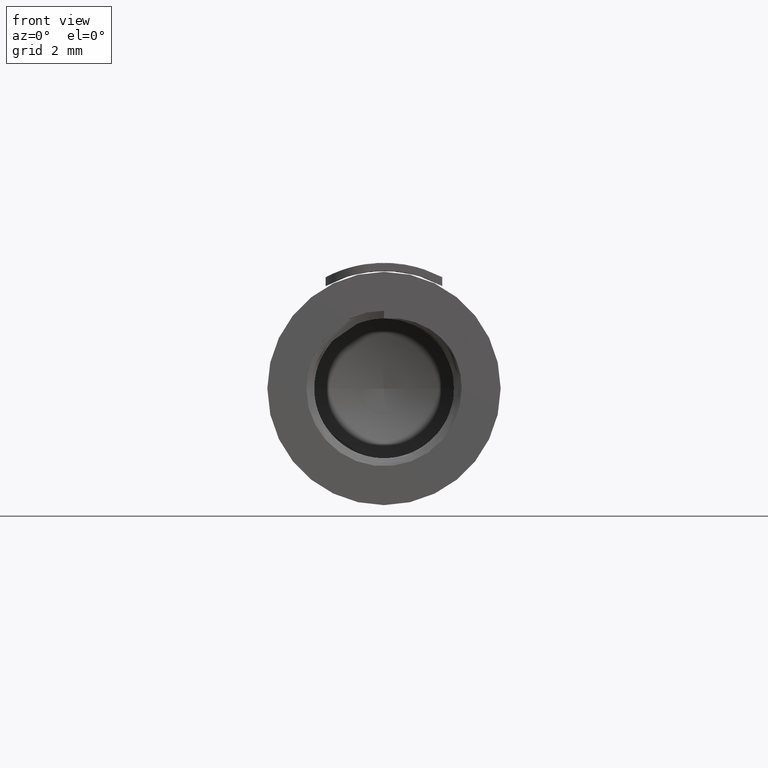
[diagram: clean part render]
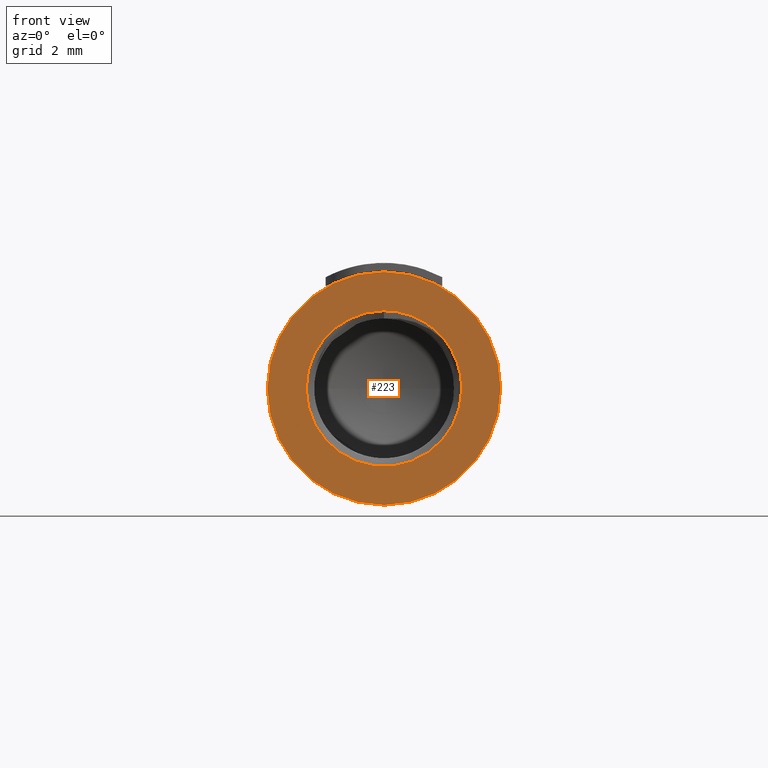
[diagram: same view with one face highlighted and labeled with its STEP entity id]
A machine part, front view. The second image highlights one B-rep face of the part: STEP entity #223.
In plain terms, the highlighted planar face has unit normal (0, 1, 0).
Its self-contained STEP definition (entity closure, byte-faithful):
#223=ADVANCED_FACE('',(#730,#731),#732,.F.);
#730=FACE_OUTER_BOUND('',#1536,.T.);
#731=FACE_BOUND('',#1537,.T.);
#732=PLANE('',#1538);
#1536=EDGE_LOOP('',(#7252,#7253));
#1537=EDGE_LOOP('',(#7254,#7255,#7256,#7257,#7258,#7259,#7260));
#1538=AXIS2_PLACEMENT_3D('',#7261,#7262,#7263);
#7252=ORIENTED_EDGE('',*,*,#9892,.T.);
#7253=ORIENTED_EDGE('',*,*,#9254,.T.);
#7254=ORIENTED_EDGE('',*,*,#9888,.F.);
#7255=ORIENTED_EDGE('',*,*,#9893,.F.);
#7256=ORIENTED_EDGE('',*,*,#9881,.F.);
#7257=ORIENTED_EDGE('',*,*,#9862,.F.);
#7258=ORIENTED_EDGE('',*,*,#9890,.F.);
#7259=ORIENTED_EDGE('',*,*,#9894,.F.);
#7260=ORIENTED_EDGE('',*,*,#9857,.F.);
#7261=CARTESIAN_POINT('',(-1.83697019872103E-16,-1.7347234759768E-15,-3.0));
#7262=DIRECTION('',(0.0,1.0,0.0));
#7263=DIRECTION('',(-1.0,0.0,6.12323399573677E-17));
#9254=EDGE_CURVE('',#10950,#10947,#10951,.T.);
#9857=EDGE_CURVE('',#12094,#12096,#12097,.T.);
#9862=EDGE_CURVE('',#12104,#12106,#12107,.T.);
#9881=EDGE_CURVE('',#12106,#12133,#12136,.T.);
#9888=EDGE_CURVE('',#12143,#12094,#12145,.T.);
#9890=EDGE_CURVE('',#12146,#12104,#12148,.T.);
#9892=EDGE_CURVE('',#10947,#10950,#12150,.T.);
#9893=EDGE_CURVE('',#12133,#12143,#12151,.T.);
#9894=EDGE_CURVE('',#12096,#12146,#12152,.T.);
#10947=VERTEX_POINT('',#13842);
#10950=VERTEX_POINT('',#13846);
#10951=CIRCLE('',#13847,3.0);
#12094=VERTEX_POINT('',#16208);
#12096=VERTEX_POINT('',#16216);
#12097=CIRCLE('',#16217,2.0);
#12104=VERTEX_POINT('',#16242);
#12106=VERTEX_POINT('',#16245);
#12107=CIRCLE('',#16246,2.0);
#12133=VERTEX_POINT('',#16309);
#12136=CIRCLE('',#16316,2.0);
#12143=VERTEX_POINT('',#16332);
#12145=B_SPLINE_CURVE_WITH_KNOTS('',3,(#16337,#16338,#16339,#16340),.UNSPECIFIED.,.F.,.F.,(4,4),(0.0,1.0),.UNSPECIFIED.);
#12146=VERTEX_POINT('',#16341);
#12148=CIRCLE('',#16349,2.0);
#12150=CIRCLE('',#16351,3.0);
#12151=CIRCLE('',#16352,2.0);
#12152=B_SPLINE_CURVE_WITH_KNOTS('',3,(#16353,#16354,#16355,#16356),.UNSPECIFIED.,.F.,.F.,(4,4),(0.0,1.0),.UNSPECIFIED.);
#13842=CARTESIAN_POINT('',(3.0,-3.46944695195361E-15,-1.83697019872103E-16));
#13846=CARTESIAN_POINT('',(-3.0,-3.5527136788005E-15,-1.83697019872103E-16));
#13847=AXIS2_PLACEMENT_3D('',#20353,#20354,#20355);
#16208=CARTESIAN_POINT('',(1.63128922839858,0.0,1.1571065004185));
#16216=CARTESIAN_POINT('',(1.29152657001807,0.0,1.52707534815325));
#16217=AXIS2_PLACEMENT_3D('',#20684,#20685,#20686);
#16242=CARTESIAN_POINT('',(4.04453249330893E-21,0.0,2.0));
#16245=CARTESIAN_POINT('',(-2.0,0.0,-1.22463677939047E-16));
#16246=AXIS2_PLACEMENT_3D('',#20688,#20689,#20690);
#16309=CARTESIAN_POINT('',(2.0,0.0,1.22465681890423E-16));
#16316=AXIS2_PLACEMENT_3D('',#20696,#20697,#20698);
#16332=CARTESIAN_POINT('',(1.72117309961417,-5.52352937761608E-13,1.01862489936496));
#16337=CARTESIAN_POINT('',(1.72112144327049,0.0,1.01869572371464));
#16338=CARTESIAN_POINT('',(1.69309813981863,0.0,1.06604205820833));
#16339=CARTESIAN_POINT('',(1.66312007428563,0.0,1.11223136056959));
#16340=CARTESIAN_POINT('',(1.63128922839858,0.0,1.1571065004185));
#16341=CARTESIAN_POINT('',(1.00413015632253,0.0,1.72965968593931));
#16349=AXIS2_PLACEMENT_3D('',#20705,#20706,#20707);
#16351=AXIS2_PLACEMENT_3D('',#20711,#20712,#20713);
#16352=AXIS2_PLACEMENT_3D('',#20714,#20715,#20716);
#16353=CARTESIAN_POINT('',(1.29152657001807,0.0,1.52707534815324));
#16354=CARTESIAN_POINT('',(1.20191902968221,0.0,1.60286107762474));
#16355=CARTESIAN_POINT('',(1.10562518095413,0.0,1.67073814444895));
#16356=CARTESIAN_POINT('',(1.00413015632253,0.0,1.72965968593932));
#20353=CARTESIAN_POINT('',(0.0,-3.46944695195361E-15,0.0));
#20354=DIRECTION('',(0.0,-1.0,0.0));
#20355=DIRECTION('',(1.0,0.0,-6.12323399573677E-17));
#20684=CARTESIAN_POINT('',(0.0,0.0,0.0));
#20685=DIRECTION('',(0.0,-1.0,0.0));
#20686=DIRECTION('',(1.0,0.0,-6.12323399573677E-17));
#20688=CARTESIAN_POINT('',(0.0,0.0,0.0));
#20689=DIRECTION('',(0.0,-1.0,0.0));
#20690=DIRECTION('',(1.0,0.0,-6.12323399573677E-17));
#20696=CARTESIAN_POINT('',(0.0,0.0,0.0));
#20697=DIRECTION('',(0.0,-1.0,0.0));
#20698=DIRECTION('',(1.0,0.0,-6.12323399573677E-17));
#20705=CARTESIAN_POINT('',(0.0,0.0,0.0));
#20706=DIRECTION('',(0.0,-1.0,0.0));
#20707=DIRECTION('',(1.0,0.0,-6.12323399573677E-17));
#20711=CARTESIAN_POINT('',(0.0,-3.46944695195361E-15,0.0));
#20712=DIRECTION('',(0.0,-1.0,0.0));
#20713=DIRECTION('',(1.0,0.0,-6.12323399573677E-17));
#20714=CARTESIAN_POINT('',(0.0,0.0,0.0));
#20715=DIRECTION('',(0.0,-1.0,0.0));
#20716=DIRECTION('',(1.0,0.0,-6.12323399573677E-17));